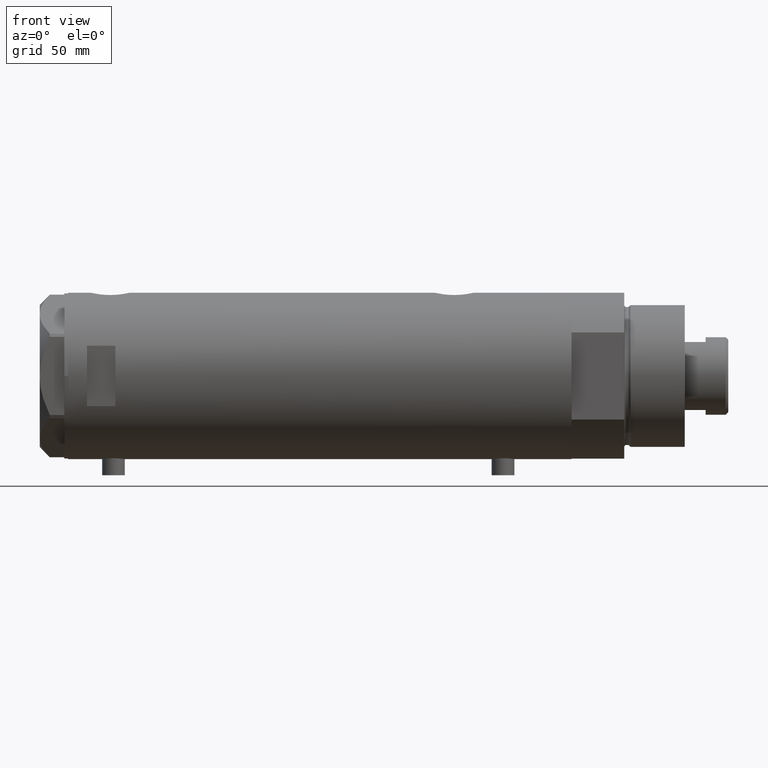
[diagram: clean part render]
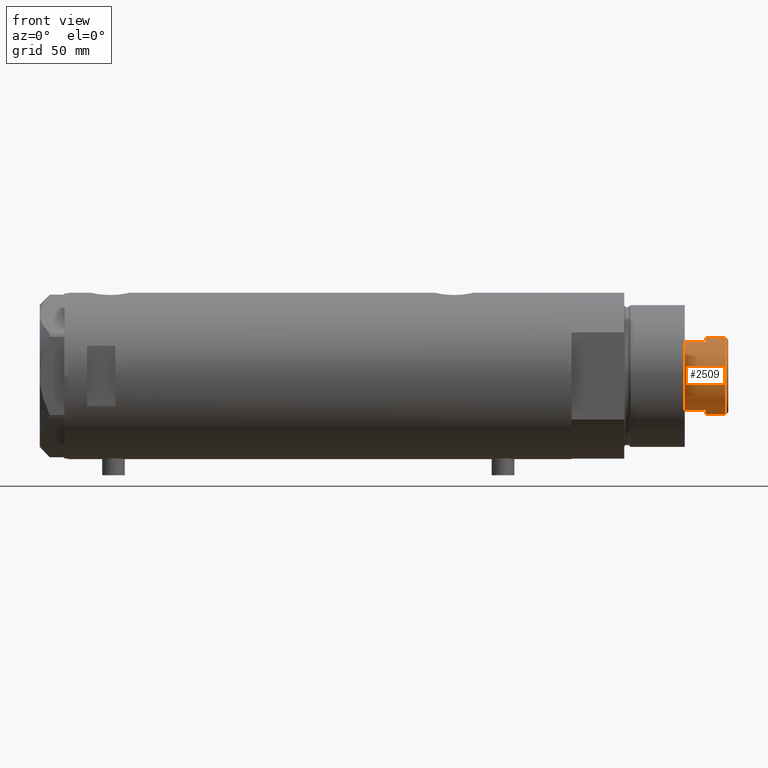
[diagram: same view with one face highlighted and labeled with its STEP entity id]
A machine part, front view. The second image highlights one B-rep face of the part: STEP entity #2509.
In plain terms, the highlighted cylindrical surface (partial cylindrical patch) has radius 20.5 mm, axis along (-1, -0, 0).
Its self-contained STEP definition (entity closure, byte-faithful):
#45 = VERTEX_POINT ( 'NONE', #3807 ) ;
#47 = DIRECTION ( 'NONE',  ( 1.000000000000000000, 0.000000000000000000, 0.000000000000000000 ) ) ;
#149 = CARTESIAN_POINT ( 'NONE',  ( 20.50000000000000355, 2.510525938252074481E-15, 311.3000000000000114 ) ) ;
#154 = CIRCLE ( 'NONE', #4342, 20.50000000000000000 ) ;
#188 = EDGE_CURVE ( 'NONE', #831, #4352, #1432, .T. ) ;
#269 = DIRECTION ( 'NONE',  ( -0.000000000000000000, -0.000000000000000000, -1.000000000000000000 ) ) ;
#293 = VECTOR ( 'NONE', #3026, 1000.000000000000000 ) ;
#296 = VERTEX_POINT ( 'NONE', #1987 ) ;
#326 = CARTESIAN_POINT ( 'NONE',  ( 20.50000000000000355, 2.510525938252074481E-15, 321.9000000000000909 ) ) ;
#379 = CARTESIAN_POINT ( 'NONE',  ( 0.000000000000000000, 0.000000000000000000, 300.3000000000000114 ) ) ;
#514 = AXIS2_PLACEMENT_3D ( 'NONE', #379, #1767, #47 ) ;
#810 = VECTOR ( 'NONE', #3600, 1000.000000000000000 ) ;
#828 = VECTOR ( 'NONE', #2018, 1000.000000000000000 ) ;
#831 = VERTEX_POINT ( 'NONE', #326 ) ;
#896 = CARTESIAN_POINT ( 'NONE',  ( 17.97852886083843060, -9.849999999999960565, 300.3000000000000114 ) ) ;
#926 = ORIENTED_EDGE ( 'NONE', *, *, #1521, .T. ) ;
#933 = ORIENTED_EDGE ( 'NONE', *, *, #188, .F. ) ;
#942 = ORIENTED_EDGE ( 'NONE', *, *, #1584, .T. ) ;
#943 = CARTESIAN_POINT ( 'NONE',  ( 0.000000000000000000, 0.000000000000000000, 321.9000000000000909 ) ) ;
#1094 = VERTEX_POINT ( 'NONE', #2084 ) ;
#1118 = ORIENTED_EDGE ( 'NONE', *, *, #1355, .T. ) ;
#1187 = AXIS2_PLACEMENT_3D ( 'NONE', #943, #4192, #1332 ) ;
#1332 = DIRECTION ( 'NONE',  ( 1.000000000000000000, 0.000000000000000000, 0.000000000000000000 ) ) ;
#1355 = EDGE_CURVE ( 'NONE', #1094, #296, #2672, .T. ) ;
#1432 = LINE ( 'NONE', #149, #810 ) ;
#1437 = CARTESIAN_POINT ( 'NONE',  ( 0.000000000000000000, 0.000000000000000000, 311.3000000000000114 ) ) ;
#1438 = EDGE_CURVE ( 'NONE', #4242, #2430, #1962, .T. ) ;
#1458 = ORIENTED_EDGE ( 'NONE', *, *, #3953, .T. ) ;
#1482 = CIRCLE ( 'NONE', #1187, 20.50000000000000355 ) ;
#1521 = EDGE_CURVE ( 'NONE', #4242, #4352, #154, .T. ) ;
#1581 = FACE_OUTER_BOUND ( 'NONE', #4414, .T. ) ;
#1584 = EDGE_CURVE ( 'NONE', #296, #2430, #3535, .T. ) ;
#1609 = VECTOR ( 'NONE', #269, 1000.000000000000000 ) ;
#1611 = ORIENTED_EDGE ( 'NONE', *, *, #1438, .F. ) ;
#1638 = CARTESIAN_POINT ( 'NONE',  ( 17.97852886083843060, -9.849999999999994316, 311.3000000000000114 ) ) ;
#1726 = DIRECTION ( 'NONE',  ( 0.000000000000000000, 0.000000000000000000, 1.000000000000000000 ) ) ;
#1767 = DIRECTION ( 'NONE',  ( 0.000000000000000000, 0.000000000000000000, 1.000000000000000000 ) ) ;
#1866 = CARTESIAN_POINT ( 'NONE',  ( -20.50000000000000000, 0.000000000000000000, 311.3000000000000114 ) ) ;
#1962 = LINE ( 'NONE', #1638, #1609 ) ;
#1987 = CARTESIAN_POINT ( 'NONE',  ( -17.97852886083842705, -9.849999999999972999, 300.3000000000000114 ) ) ;
#2018 = DIRECTION ( 'NONE',  ( -0.000000000000000000, -0.000000000000000000, -1.000000000000000000 ) ) ;
#2084 = CARTESIAN_POINT ( 'NONE',  ( -17.97852886083842705, -9.849999999999996092, 311.3000000000000114 ) ) ;
#2350 = CARTESIAN_POINT ( 'NONE',  ( 20.50000000000000000, 2.510525938252074481E-15, 311.3000000000000114 ) ) ;
#2430 = VERTEX_POINT ( 'NONE', #896 ) ;
#2509 = ADVANCED_FACE ( 'NONE', ( #1581 ), #2626, .T. ) ;
#2598 = AXIS2_PLACEMENT_3D ( 'NONE', #4246, #1726, #2755 ) ;
#2626 = CYLINDRICAL_SURFACE ( 'NONE', #3327, 20.50000000000000355 ) ;
#2648 = DIRECTION ( 'NONE',  ( -1.000000000000000000, 0.000000000000000000, 0.000000000000000000 ) ) ;
#2672 = LINE ( 'NONE', #3379, #293 ) ;
#2700 = LINE ( 'NONE', #4151, #828 ) ;
#2701 = CARTESIAN_POINT ( 'NONE',  ( 17.97852886083843060, -9.849999999999994316, 311.3000000000000114 ) ) ;
#2755 = DIRECTION ( 'NONE',  ( 1.000000000000000000, 0.000000000000000000, 0.000000000000000000 ) ) ;
#2765 = DIRECTION ( 'NONE',  ( 0.000000000000000000, 0.000000000000000000, 1.000000000000000000 ) ) ;
#3026 = DIRECTION ( 'NONE',  ( -0.000000000000000000, -0.000000000000000000, -1.000000000000000000 ) ) ;
#3115 = EDGE_CURVE ( 'NONE', #831, #45, #1482, .T. ) ;
#3134 = ORIENTED_EDGE ( 'NONE', *, *, #3115, .T. ) ;
#3203 = ORIENTED_EDGE ( 'NONE', *, *, #3604, .T. ) ;
#3327 = AXIS2_PLACEMENT_3D ( 'NONE', #3365, #3657, #2648 ) ;
#3365 = CARTESIAN_POINT ( 'NONE',  ( 0.000000000000000000, 0.000000000000000000, 311.3000000000000114 ) ) ;
#3379 = CARTESIAN_POINT ( 'NONE',  ( -17.97852886083842350, -9.850000000000001421, 311.3000000000000114 ) ) ;
#3535 = CIRCLE ( 'NONE', #514, 20.50000000000000355 ) ;
#3600 = DIRECTION ( 'NONE',  ( -0.000000000000000000, -0.000000000000000000, -1.000000000000000000 ) ) ;
#3604 = EDGE_CURVE ( 'NONE', #45, #4237, #2700, .T. ) ;
#3657 = DIRECTION ( 'NONE',  ( -0.000000000000000000, -0.000000000000000000, -1.000000000000000000 ) ) ;
#3774 = CIRCLE ( 'NONE', #2598, 20.50000000000000000 ) ;
#3807 = CARTESIAN_POINT ( 'NONE',  ( -20.50000000000000355, 0.000000000000000000, 321.9000000000000909 ) ) ;
#3901 = DIRECTION ( 'NONE',  ( 1.000000000000000000, 0.000000000000000000, 0.000000000000000000 ) ) ;
#3953 = EDGE_CURVE ( 'NONE', #4237, #1094, #3774, .T. ) ;
#4151 = CARTESIAN_POINT ( 'NONE',  ( -20.50000000000000355, 0.000000000000000000, 311.3000000000000114 ) ) ;
#4192 = DIRECTION ( 'NONE',  ( 0.000000000000000000, 0.000000000000000000, -1.000000000000000000 ) ) ;
#4237 = VERTEX_POINT ( 'NONE', #1866 ) ;
#4242 = VERTEX_POINT ( 'NONE', #2701 ) ;
#4246 = CARTESIAN_POINT ( 'NONE',  ( 0.000000000000000000, 0.000000000000000000, 311.3000000000000114 ) ) ;
#4342 = AXIS2_PLACEMENT_3D ( 'NONE', #1437, #2765, #3901 ) ;
#4352 = VERTEX_POINT ( 'NONE', #2350 ) ;
#4414 = EDGE_LOOP ( 'NONE', ( #933, #3134, #3203, #1458, #1118, #942, #1611, #926 ) ) ;